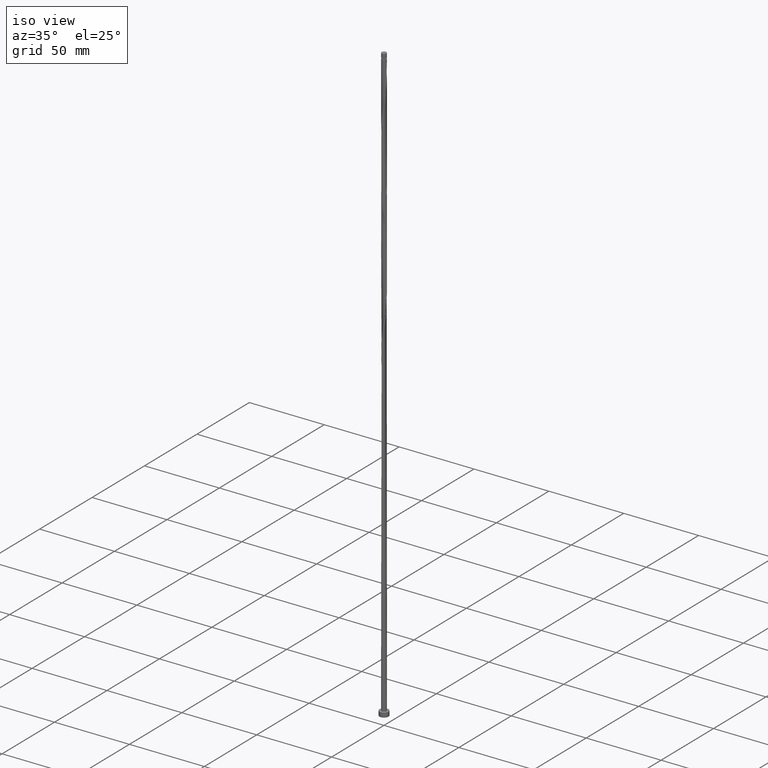
[diagram: clean part render]
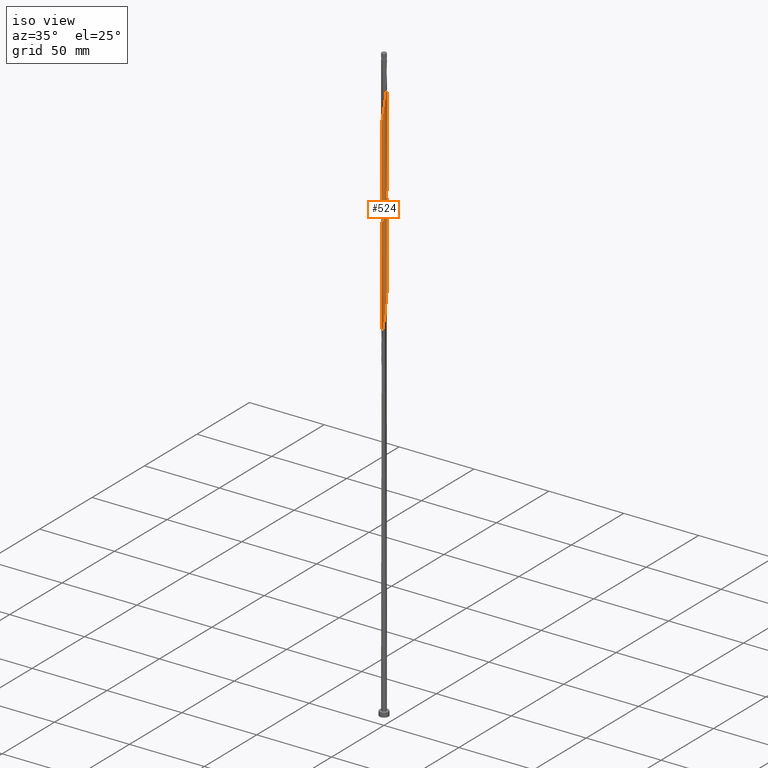
[diagram: same view with one face highlighted and labeled with its STEP entity id]
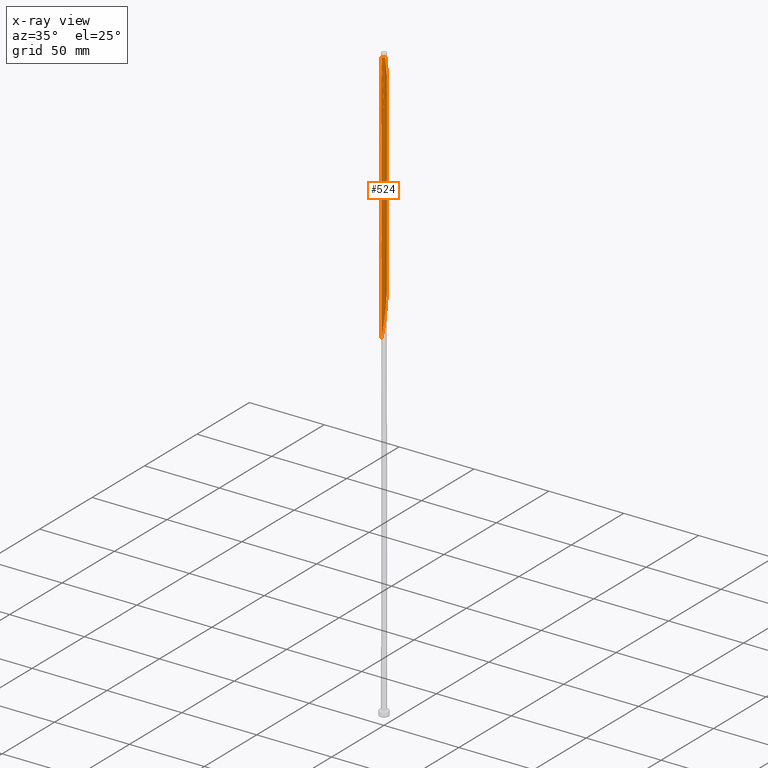
[diagram: x-ray of the same camera — body ghosted, the highlighted face saturated]
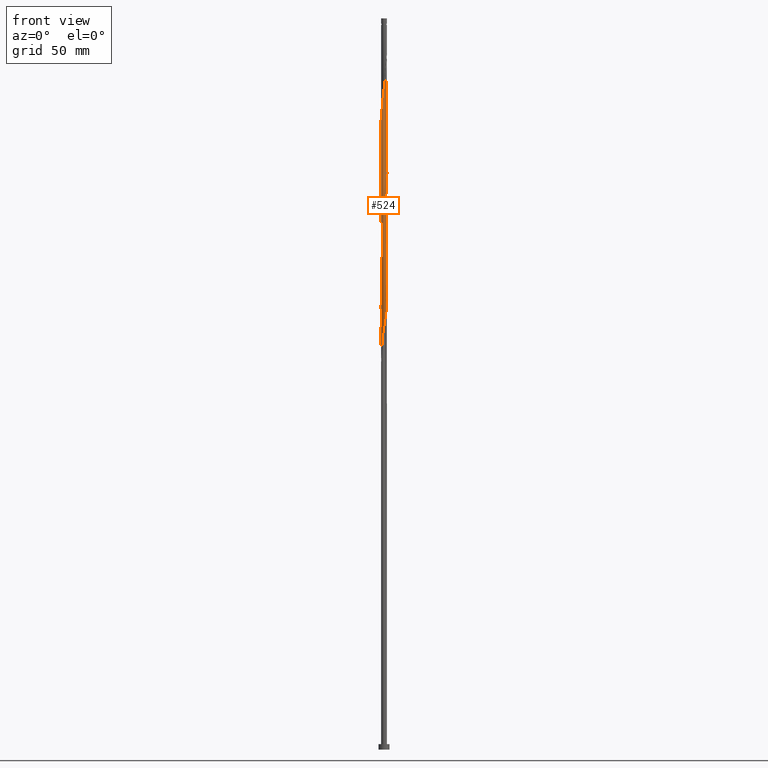
[diagram: same view with one face highlighted and labeled with its STEP entity id]
A machine part, iso view. The second image highlights one B-rep face of the part: STEP entity #524.
The next image is the same camera in x-ray: the body ghosted, the highlighted face saturated — about 0% of this face is hidden behind the body in this view.
A second angle (front view) of the same face is appended — the face is thin or edge-on in the first view.
In plain terms, the highlighted cylindrical surface (bore or boss wall) has radius 1.6 mm, axis along (-0, -0, -1).
Its self-contained STEP definition (entity closure, byte-faithful):
#2 = CARTESIAN_POINT ( 'NONE',  ( -0.9522025912731599817, 1.285811115666947391, 338.6447681997843233 ) ) ;
#11 = CARTESIAN_POINT ( 'NONE',  ( -1.600000000000000755, -2.018036081789663311E-16, 215.2146558877503253 ) ) ;
#23 = CARTESIAN_POINT ( 'NONE',  ( -1.517125823071060253, -0.5082609929661713322, 218.6447681997843802 ) ) ;
#32 = CARTESIAN_POINT ( 'NONE',  ( 0.9522025912731596486, -1.285811115666947391, 238.6447681997843802 ) ) ;
#41 = CARTESIAN_POINT ( 'NONE',  ( 0.7916881692281134697, 1.400539148827137481, 259.7558793108954660 ) ) ;
#44 = CARTESIAN_POINT ( 'NONE',  ( -1.087346785281442685, -1.185730590493187186, 353.0892126442287804 ) ) ;
#51 = CARTESIAN_POINT ( 'NONE',  ( 0.6640595169357693672, -1.455687108539137187, 236.4225459775620948 ) ) ;
#54 = CARTESIAN_POINT ( 'NONE',  ( -0.9522025912731623132, -1.285811115666948501, 354.2003237553398662 ) ) ;
#89 = CARTESIAN_POINT ( 'NONE',  ( 1.463705440089979160, -0.6677173424018667536, 373.0892126442287804 ) ) ;
#93 = CYLINDRICAL_SURFACE ( 'NONE', #745, 1.600000000000000089 ) ;
#97 = CARTESIAN_POINT ( 'NONE',  ( -1.600000000000002309, -0.07655039885880654538, 344.8056512596046446 ) ) ;
#105 = EDGE_CURVE ( 'NONE', #151, #998, #881, .T. ) ;
#107 = CARTESIAN_POINT ( 'NONE',  ( -0.8170583972648792770, 1.385891640840708705, 337.5336570886734080 ) ) ;
#119 = CARTESIAN_POINT ( 'NONE',  ( 0.1535925389775409378, 1.601464765976335469, 330.8669904220065519 ) ) ;
#139 = CARTESIAN_POINT ( 'NONE',  ( 1.392866848829033222, -0.7873512186013815750, 309.7558793108954660 ) ) ;
#140 = CIRCLE ( 'NONE', #1398, 1.599999999999963674 ) ;
#149 = VERTEX_POINT ( 'NONE', #1861 ) ;
#150 = CARTESIAN_POINT ( 'NONE',  ( -0.1827270737877119133, 1.598402602975290909, 333.0892126442286667 ) ) ;
#151 = VERTEX_POINT ( 'NONE', #369 ) ;
#162 = CARTESIAN_POINT ( 'NONE',  ( -1.570546206052143123, -0.3488046435304777981, 217.5336570886732375 ) ) ;
#170 = CARTESIAN_POINT ( 'NONE',  ( 1.576636982355593464, -0.3201497939431682260, 246.4225459775621232 ) ) ;
#179 = CARTESIAN_POINT ( 'NONE',  ( -0.9286322574885236270, -1.302935965560767295, 225.3114348664510374 ) ) ;
#185 = CARTESIAN_POINT ( 'NONE',  ( 0.4831994207707034916, 1.534535234023664652, 261.9781015331176945 ) ) ;
#188 = CARTESIAN_POINT ( 'NONE',  ( 1.517125823071062474, -0.5082609929661735526, 374.2003237553400368 ) ) ;
#194 = CARTESIAN_POINT ( 'NONE',  ( 1.378299581423948261, 0.8125824658744306150, 254.2003237553398662 ) ) ;
#198 = CARTESIAN_POINT ( 'NONE',  ( 1.310112901112438832, 0.9337474235744698259, 384.2003237553398662 ) ) ;
#208 = CARTESIAN_POINT ( 'NONE',  ( 1.179235034253427017, -1.081390185820699346, 369.7558793108955228 ) ) ;
#230 = DIRECTION ( 'NONE',  ( -0.000000000000000000, -0.000000000000000000, -1.000000000000000000 ) ) ;
#239 = CARTESIAN_POINT ( 'NONE',  ( -1.392866848829033222, 0.7873512186013812419, 343.0892126442288941 ) ) ;
#246 = LINE ( 'NONE', #398, #559 ) ;
#250 = CARTESIAN_POINT ( 'NONE',  ( -0.3183959798741484715, 1.568000000000404404, 396.4225459775619811 ) ) ;
#254 = CARTESIAN_POINT ( 'NONE',  ( 1.600000000000000311, -5.007719165922497691E-16, 315.2146558877502684 ) ) ;
#273 = CARTESIAN_POINT ( 'NONE',  ( 0.6640595169357693672, -1.455687108539137187, 303.0892126442288941 ) ) ;
#291 = CARTESIAN_POINT ( 'NONE',  ( -0.3183959798741217706, -1.567999999999999838, 296.4225459775621516 ) ) ;
#302 = CARTESIAN_POINT ( 'NONE',  ( -0.7916881692281132477, -1.400539148827137481, 293.0892126442287235 ) ) ;
#303 =( BOUNDED_CURVE ( )  B_SPLINE_CURVE ( 2, ( #1008, #1722, #1315, #1713, #570, #1603, #139, #1164, #445, #1174, #1742, #437, #273, #1026, #1185, #402, #1035, #1587, #291, #883, #1614, #302, #1464, #894, #414, #725, #1285, #543, #1140, #996, #1226, #312, #1798, #1363, #486, #1781, #612, #1761, #1510, #319, #775, #1201, #1371, #1492, #604, #756, #1622, #462, #903, #185, #1194, #41, #1070, #327, #1209, #746, #194, #1483, #1655, #1630, #1648, #479, #471, #170, #765, #1219, #1773, #1052, #1062, #454, #32, #1355, #51, #1346, #921, #1789, #1638, #1474, #1502, #911, #588, #619, #179, #337, #1079, #930, #1045, #344, #23, #162, #736, #1335, #11 ),
 .UNSPECIFIED., .F., .T. ) 
 B_SPLINE_CURVE_WITH_KNOTS ( ( 3, 2, 2, 2, 2, 2, 2, 2, 2, 2, 2, 2, 2, 2, 2, 2, 2, 2, 2, 2, 2, 2, 2, 2, 2, 2, 2, 2, 2, 2, 2, 2, 2, 2, 2, 2, 2, 2, 2, 2, 2, 2, 2, 2, 2, 2, 3 ),
 ( 0.5545286012773112949, 0.5583333333333333481, 0.5666666666666666519, 0.5749999999999999556, 0.5833333333333333703, 0.5916666666666666741, 0.5999999999999999778, 0.6083333333333332815, 0.6166666666666666963, 0.6250000000000000000, 0.6333333333333333037, 0.6416666666666667185, 0.6500000000000000222, 0.6583333333333333259, 0.6666666666666666297, 0.6750000000000000444, 0.6833333333333333481, 0.6916666666666666519, 0.6999999999999999556, 0.7083333333333333703, 0.7166666666666666741, 0.7249999999999999778, 0.7333333333333332815, 0.7416666666666666963, 0.7500000000000000000, 0.7583333333333333037, 0.7666666666666667185, 0.7750000000000000222, 0.7833333333333333259, 0.7916666666666666297, 0.8000000000000000444, 0.8083333333333333481, 0.8166666666666666519, 0.8249999999999999556, 0.8333333333333333703, 0.8416666666666666741, 0.8499999999999999778, 0.8583333333333332815, 0.8666666666666666963, 0.8750000000000000000, 0.8833333333333333037, 0.8916666666666667185, 0.9000000000000000222, 0.9083333333333333259, 0.9166666666666666297, 0.9250000000000000444, 0.9295286012773115170 ),
 .UNSPECIFIED. ) 
 CURVE ( )  GEOMETRIC_REPRESENTATION_ITEM ( )  RATIONAL_B_SPLINE_CURVE ( ( 0.9066196499552896526, 0.9068171577857023768, 0.9090909090910015422, 0.9041108139712494829, 0.9090909090910015422, 0.9041108139712494829, 0.9090909090910015422, 0.9041108139712494829, 0.9090909090910015422, 0.9041108139712494829, 0.9090909090910015422, 0.9041108139712494829, 0.9090909090910015422, 0.9041108139712494829, 0.9090909090910015422, 0.9041108139712494829, 0.9090909090910015422, 0.9041108139712494829, 0.9090909090910015422, 0.9041108139712494829, 0.9090909090910015422, 0.9041108139712494829, 0.9090909090910015422, 0.9041108139712494829, 0.9090909090910015422, 0.9041108139712494829, 0.9090909090910015422, 0.9041108139712494829, 0.9090909090910015422, 0.9041108139712494829, 0.9090909090910015422, 0.9041108139712494829, 0.9090909090910015422, 0.9041108139712494829, 0.9090909090910015422, 0.9041108139712494829, 0.9090909090910015422, 0.9041108139712494829, 0.9090909090910015422, 0.9041108139712494829, 0.9090909090910015422, 0.9041108139712494829, 0.9090909090910015422, 0.9041108139712494829, 0.9090909090910015422, 0.9041108139712494829, 0.9090909090910015422, 0.9041108139712494829, 0.9090909090910015422, 0.9041108139712494829, 0.9090909090910015422, 0.9041108139712494829, 0.9090909090910015422, 0.9041108139712494829, 0.9090909090910015422, 0.9041108139712494829, 0.9090909090910015422, 0.9041108139712494829, 0.9090909090910015422, 0.9041108139712494829, 0.9090909090910015422, 0.9041108139712494829, 0.9090909090910015422, 0.9041108139712494829, 0.9090909090910015422, 0.9041108139712494829, 0.9090909090910015422, 0.9041108139712494829, 0.9090909090910015422, 0.9041108139712494829, 0.9090909090910015422, 0.9041108139712494829, 0.9090909090910015422, 0.9041108139712494829, 0.9090909090910015422, 0.9041108139712494829, 0.9090909090910015422, 0.9041108139712494829, 0.9090909090910015422, 0.9041108139712494829, 0.9090909090910015422, 0.9041108139712494829, 0.9090909090910015422, 0.9041108139712494829, 0.9090909090910015422, 0.9041108139712494829, 0.9090909090910015422, 0.9041108139712494829, 0.9090909090910015422, 0.9041108139712494829, 0.9090909090910015422, 0.9063845652765485372, 0.9066196499552896526 ) ) 
 REPRESENTATION_ITEM ( '' )  );
#312 = CARTESIAN_POINT ( 'NONE',  ( -1.608746566492992969, -0.01464750798642886973, 281.9781015331176377 ) ) ;
#319 = CARTESIAN_POINT ( 'NONE',  ( -1.087346785281440686, 1.185730590493186298, 273.0892126442287235 ) ) ;
#327 = CARTESIAN_POINT ( 'NONE',  ( 1.065576345748934228, 1.205332782294397331, 257.5336570886732375 ) ) ;
#331 = CARTESIAN_POINT ( 'NONE',  ( -1.592691774424293660, 0.1527511429783695862, 347.5336570886733512 ) ) ;
#337 = CARTESIAN_POINT ( 'NONE',  ( -1.065576345748934228, -1.205332782294397331, 224.2003237553398947 ) ) ;
#339 = CARTESIAN_POINT ( 'NONE',  ( -1.576636982355595462, -0.3201497939431680595, 346.4225459775619811 ) ) ;
#344 = CARTESIAN_POINT ( 'NONE',  ( -1.463705440089977383, -0.6677173424018653103, 219.7558793108954944 ) ) ;
#346 = CARTESIAN_POINT ( 'NONE',  ( -0.5110606366066613448, -1.525482576237567223, 357.5336570886732943 ) ) ;
#369 = CARTESIAN_POINT ( 'NONE',  ( 1.600000000000000089, 1.959434878635765230E-16, 396.4225459775620948 ) ) ;
#384 = CARTESIAN_POINT ( 'NONE',  ( -1.600000000000000533, 0.07655039885880325634, 348.0394406955194881 ) ) ;
#394 = CARTESIAN_POINT ( 'NONE',  ( 1.087346785281442907, 1.185730590493187186, 386.4225459775620948 ) ) ;
#398 = CARTESIAN_POINT ( 'NONE',  ( -1.600000000000000089, 0.000000000000000000, 400.0000000000000000 ) ) ;
#402 = CARTESIAN_POINT ( 'NONE',  ( 0.1827270737877116913, -1.598402602975290909, 299.7558793108954092 ) ) ;
#406 = CARTESIAN_POINT ( 'NONE',  ( -1.600000000000000755, -2.018036081789663311E-16, 215.2146558877503253 ) ) ;
#414 = CARTESIAN_POINT ( 'NONE',  ( -1.179235034253425907, -1.081390185820697125, 289.7558793108954660 ) ) ;
#425 = CARTESIAN_POINT ( 'NONE',  ( -1.087346785281440686, 1.185730590493186298, 339.7558793108955228 ) ) ;
#437 = CARTESIAN_POINT ( 'NONE',  ( 0.8170583972648787219, -1.385891640840708927, 304.2003237553399799 ) ) ;
#445 = CARTESIAN_POINT ( 'NONE',  ( 1.198729843196938649, -1.059739007033828839, 307.5336570886732375 ) ) ;
#454 = CARTESIAN_POINT ( 'NONE',  ( 1.087346785281440686, -1.185730590493186742, 239.7558793108954660 ) ) ;
#458 = CARTESIAN_POINT ( 'NONE',  ( -1.600000000000000755, 8.296370558468615534E-16, 348.5479892210835260 ) ) ;
#462 = CARTESIAN_POINT ( 'NONE',  ( 0.1535925389775409378, 1.601464765976335469, 264.2003237553399231 ) ) ;
#465 = CARTESIAN_POINT ( 'NONE',  ( -0.3183959798741484715, 1.568000000000404626, 396.4225459775619811 ) ) ;
#471 = CARTESIAN_POINT ( 'NONE',  ( 1.592691774424293216, -0.1527511429783701691, 247.5336570886732375 ) ) ;
#474 = CARTESIAN_POINT ( 'NONE',  ( 0.1827270737877127738, 1.598402602975293130, 393.0892126442286667 ) ) ;
#479 = CARTESIAN_POINT ( 'NONE',  ( 1.608746566492992969, 0.01464750798642791216, 248.6447681997843517 ) ) ;
#481 = CARTESIAN_POINT ( 'NONE',  ( 1.570546206052145122, -0.3488046435304797965, 375.3114348664509521 ) ) ;
#486 = CARTESIAN_POINT ( 'NONE',  ( -1.526128889450611759, 0.4805524037857308861, 278.6447681997843233 ) ) ;
#490 = CARTESIAN_POINT ( 'NONE',  ( 1.608746566492994745, -0.01464750798643017597, 377.5336570886731806 ) ) ;
#524 = ADVANCED_FACE ( 'NONE', ( #1301 ), #93, .T. ) ;
#525 = CARTESIAN_POINT ( 'NONE',  ( 0.1535925389775404382, -1.601464765976337468, 361.9781015331176377 ) ) ;
#534 = CARTESIAN_POINT ( 'NONE',  ( -1.310112901112438610, -0.9337474235744704920, 350.8669904220066087 ) ) ;
#543 = CARTESIAN_POINT ( 'NONE',  ( -1.463705440089977383, -0.6677173424018653103, 286.4225459775620948 ) ) ;
#559 = VECTOR ( 'NONE', #835, 1000.000000000000000 ) ;
#562 = CARTESIAN_POINT ( 'NONE',  ( 0.7916881692281134697, 1.400539148827137481, 326.4225459775620948 ) ) ;
#570 = CARTESIAN_POINT ( 'NONE',  ( 1.526128889450611537, -0.4805524037857317743, 311.9781015331177514 ) ) ;
#578 = CARTESIAN_POINT ( 'NONE',  ( 1.570546206052143567, 0.3488046435304771320, 317.5336570886734080 ) ) ;
#580 = ORIENTED_EDGE ( 'NONE', *, *, #1359, .F. ) ;
#588 = CARTESIAN_POINT ( 'NONE',  ( -0.6374437949994082864, -1.467537191425400955, 227.5336570886732375 ) ) ;
#597 = CARTESIAN_POINT ( 'NONE',  ( 0.000000000000000000, 0.000000000000000000, 396.4225459775620948 ) ) ;
#604 = CARTESIAN_POINT ( 'NONE',  ( -0.3468938551971859074, 1.561942589606428067, 267.5336570886732943 ) ) ;
#607 = CARTESIAN_POINT ( 'NONE',  ( -1.198729843196940870, -1.059739007033828617, 351.9781015331176945 ) ) ;
#612 = CARTESIAN_POINT ( 'NONE',  ( -1.392866848829033222, 0.7873512186013812419, 276.4225459775621516 ) ) ;
#614 = CARTESIAN_POINT ( 'NONE',  ( -0.3468938551971870732, -1.561942589606430287, 358.6447681997843802 ) ) ;
#619 = CARTESIAN_POINT ( 'NONE',  ( -0.7916881692281132477, -1.400539148827137481, 226.4225459775620948 ) ) ;
#623 = CARTESIAN_POINT ( 'NONE',  ( 1.589646386272570044, -0.1817260757584543140, 376.4225459775621516 ) ) ;
#658 = CARTESIAN_POINT ( 'NONE',  ( 0.6640595169357711436, 1.455687108539138963, 389.7558793108954660 ) ) ;
#667 = CARTESIAN_POINT ( 'NONE',  ( -0.6640595169357709215, -1.455687108539138963, 356.4225459775620948 ) ) ;
#680 = CARTESIAN_POINT ( 'NONE',  ( 0.9286322574885242931, 1.302935965560767073, 325.3114348664509521 ) ) ;
#692 = CARTESIAN_POINT ( 'NONE',  ( 0.3183959798741219371, 1.567999999999999838, 329.7558793108955228 ) ) ;
#703 = VERTEX_POINT ( 'NONE', #406 ) ;
#704 = CARTESIAN_POINT ( 'NONE',  ( 1.378299581423948261, 0.8125824658744306150, 320.8669904220065519 ) ) ;
#725 = CARTESIAN_POINT ( 'NONE',  ( -1.292893722757917807, -0.9574475893469971410, 288.6447681997844370 ) ) ;
#736 = CARTESIAN_POINT ( 'NONE',  ( -1.589646386272567824, -0.1817260757584534536, 216.4225459775621516 ) ) ;
#745 = AXIS2_PLACEMENT_3D ( 'NONE', #1728, #1136, #1583 ) ;
#746 = CARTESIAN_POINT ( 'NONE',  ( 1.292893722757918473, 0.9574475893469965859, 255.3114348664510374 ) ) ;
#756 = CARTESIAN_POINT ( 'NONE',  ( -0.1827270737877119133, 1.598402602975290909, 266.4225459775620948 ) ) ;
#765 = CARTESIAN_POINT ( 'NONE',  ( 1.526128889450611537, -0.4805524037857317743, 245.3114348664510374 ) ) ;
#768 = CARTESIAN_POINT ( 'NONE',  ( -1.475620796545629831, 0.6409550136282937682, 344.2003237553399231 ) ) ;
#775 = CARTESIAN_POINT ( 'NONE',  ( -0.9522025912731599817, 1.285811115666947391, 271.9781015331177514 ) ) ;
#781 = CARTESIAN_POINT ( 'NONE',  ( 0.5110606366066614559, 1.525482576237567223, 390.8669904220066087 ) ) ;
#816 = CARTESIAN_POINT ( 'NONE',  ( 0.3468938551971877948, 1.561942589606429843, 391.9781015331177514 ) ) ;
#829 = CARTESIAN_POINT ( 'NONE',  ( -1.310112901112436168, 0.9337474235744698259, 341.9781015331175809 ) ) ;
#831 = VECTOR ( 'NONE', #1572, 1000.000000000000000 ) ;
#833 = ORIENTED_EDGE ( 'NONE', *, *, #105, .F. ) ;
#835 = DIRECTION ( 'NONE',  ( -0.000000000000000000, -0.000000000000000000, -1.000000000000000000 ) ) ;
#849 = ORIENTED_EDGE ( 'NONE', *, *, #1436, .F. ) ;
#852 = CARTESIAN_POINT ( 'NONE',  ( 1.292893722757918473, 0.9574475893469965859, 321.9781015331176945 ) ) ;
#863 = CARTESIAN_POINT ( 'NONE',  ( 1.179235034253425907, 1.081390185820697125, 323.0892126442287235 ) ) ;
#881 = LINE ( 'NONE', #991, #831 ) ;
#883 = CARTESIAN_POINT ( 'NONE',  ( -0.4831994207707026590, -1.534535234023664652, 295.3114348664511226 ) ) ;
#894 = CARTESIAN_POINT ( 'NONE',  ( -1.065576345748934228, -1.205332782294397331, 290.8669904220066087 ) ) ;
#902 = EDGE_CURVE ( 'NONE', #149, #703, #246, .T. ) ;
#903 = CARTESIAN_POINT ( 'NONE',  ( 0.3183959798741219371, 1.567999999999999838, 263.0892126442288372 ) ) ;
#911 = CARTESIAN_POINT ( 'NONE',  ( -0.4831994207707026590, -1.534535234023664652, 228.6447681997843802 ) ) ;
#921 = CARTESIAN_POINT ( 'NONE',  ( 0.3468938551971852968, -1.561942589606428289, 234.2003237553399231 ) ) ;
#930 = CARTESIAN_POINT ( 'NONE',  ( -1.292893722757917807, -0.9574475893469971410, 221.9781015331176661 ) ) ;
#933 = CARTESIAN_POINT ( 'NONE',  ( -1.475620796545631830, -0.6409550136282935462, 348.6447681997842665 ) ) ;
#942 = CARTESIAN_POINT ( 'NONE',  ( -1.392866848829035442, -0.7873512186013823522, 349.7558793108954092 ) ) ;
#967 =( BOUNDED_CURVE ( )  B_SPLINE_CURVE ( 2, ( #1694, #384, #331, #976, #1505, #768, #239, #829, #1416, #425, #2, #107, #1435, #1444, #1325, #150, #1732, #119, #692, #1017, #1888, #562, #680, #1305, #863, #852, #704, #1595, #1152, #578, #1454, #1577, #1296 ),
 .UNSPECIFIED., .F., .T. ) 
 B_SPLINE_CURVE_WITH_KNOTS ( ( 3, 2, 2, 2, 2, 2, 2, 2, 2, 2, 2, 2, 2, 2, 2, 2, 3 ),
 ( 0.4295286012773115170, 0.4333333333333333481, 0.4416666666666666519, 0.4500000000000000111, 0.4583333333333333148, 0.4666666666666666741, 0.4749999999999999778, 0.4833333333333333370, 0.4916666666666666408, 0.5000000000000000000, 0.5083333333333333037, 0.5166666666666667185, 0.5250000000000000222, 0.5333333333333333259, 0.5416666666666666297, 0.5500000000000000444, 0.5545286012773112949 ),
 .UNSPECIFIED. ) 
 CURVE ( )  GEOMETRIC_REPRESENTATION_ITEM ( )  RATIONAL_B_SPLINE_CURVE ( ( 0.9066196499552897636, 0.9068171577857024879, 0.9090909090910015422, 0.9041108139712494829, 0.9090909090910015422, 0.9041108139712494829, 0.9090909090910015422, 0.9041108139712494829, 0.9090909090910015422, 0.9041108139712494829, 0.9090909090910015422, 0.9041108139712494829, 0.9090909090910015422, 0.9041108139712494829, 0.9090909090910015422, 0.9041108139712494829, 0.9090909090910015422, 0.9041108139712494829, 0.9090909090910015422, 0.9041108139712494829, 0.9090909090910015422, 0.9041108139712494829, 0.9090909090910015422, 0.9041108139712494829, 0.9090909090910015422, 0.9041108139712494829, 0.9090909090910015422, 0.9041108139712494829, 0.9090909090910015422, 0.9041108139712494829, 0.9090909090910015422, 0.9063845652765486482, 0.9066196499552896526 ) ) 
 REPRESENTATION_ITEM ( '' )  );
#976 = CARTESIAN_POINT ( 'NONE',  ( -1.576636982355593464, 0.3201497939431680040, 346.4225459775620379 ) ) ;
#984 = CARTESIAN_POINT ( 'NONE',  ( 0.6374437949994080643, -1.467537191425403620, 365.3114348664509521 ) ) ;
#991 = CARTESIAN_POINT ( 'NONE',  ( 1.600000000000000089, 1.959434878635765230E-16, 400.0000000000000000 ) ) ;
#996 = CARTESIAN_POINT ( 'NONE',  ( -1.570546206052143123, -0.3488046435304777981, 284.2003237553399231 ) ) ;
#998 = VERTEX_POINT ( 'NONE', #254 ) ;
#1008 = CARTESIAN_POINT ( 'NONE',  ( 1.600000000000000089, -5.007719165922497691E-16, 315.2146558877502684 ) ) ;
#1017 = CARTESIAN_POINT ( 'NONE',  ( 0.4831994207707034916, 1.534535234023664652, 328.6447681997842665 ) ) ;
#1026 = CARTESIAN_POINT ( 'NONE',  ( 0.5110606366066593464, -1.525482576237566334, 301.9781015331176945 ) ) ;
#1035 = CARTESIAN_POINT ( 'NONE',  ( 0.01456726740508504023, -1.599933684475813411, 298.6447681997844370 ) ) ;
#1045 = CARTESIAN_POINT ( 'NONE',  ( -1.378299581423948261, -0.8125824658744308371, 220.8669904220065234 ) ) ;
#1052 = CARTESIAN_POINT ( 'NONE',  ( 1.310112901112435946, -0.9337474235744704920, 241.9781015331176377 ) ) ;
#1062 = CARTESIAN_POINT ( 'NONE',  ( 1.198729843196938649, -1.059739007033828839, 240.8669904220065519 ) ) ;
#1070 = CARTESIAN_POINT ( 'NONE',  ( 0.9286322574885242931, 1.302935965560767073, 258.6447681997843233 ) ) ;
#1074 = CARTESIAN_POINT ( 'NONE',  ( 1.592691774424295659, 0.1527511429783681429, 378.6447681997843233 ) ) ;
#1079 = CARTESIAN_POINT ( 'NONE',  ( -1.179235034253425907, -1.081390185820697125, 223.0892126442287520 ) ) ;
#1083 = CARTESIAN_POINT ( 'NONE',  ( 0.8170583972648817195, 1.385891640840709371, 388.6447681997843233 ) ) ;
#1108 =( BOUNDED_CURVE ( )  B_SPLINE_CURVE ( 2, ( #1365, #97, #1848, #339, #1229, #933, #942, #534, #607, #44, #54, #1130, #667, #346, #614, #1221, #1523, #525, #1783, #1275, #984, #1374, #1792, #1801, #208, #1650, #1703, #89, #188, #481, #623, #490, #1074, #1406, #1642, #1425, #1513, #198, #1211, #394, #1567, #1083, #658, #781, #816, #474, #1658, #1266, #250 ),
 .UNSPECIFIED., .F., .T. ) 
 B_SPLINE_CURVE_WITH_KNOTS ( ( 3, 2, 2, 2, 2, 2, 2, 2, 2, 2, 2, 2, 2, 2, 2, 2, 2, 2, 2, 2, 2, 2, 2, 2, 3 ),
 ( 0.5545286012773117390, 0.5583333333333333481, 0.5666666666666666519, 0.5749999999999999556, 0.5833333333333332593, 0.5916666666666666741, 0.5999999999999999778, 0.6083333333333333925, 0.6166666666666666963, 0.6250000000000000000, 0.6333333333333333037, 0.6416666666666666075, 0.6500000000000000222, 0.6583333333333333259, 0.6666666666666667407, 0.6750000000000000444, 0.6833333333333333481, 0.6916666666666666519, 0.6999999999999999556, 0.7083333333333332593, 0.7166666666666666741, 0.7249999999999999778, 0.7333333333333333925, 0.7416666666666666963, 0.7500000000000000000 ),
 .UNSPECIFIED. ) 
 CURVE ( )  GEOMETRIC_REPRESENTATION_ITEM ( )  RATIONAL_B_SPLINE_CURVE ( ( 0.9066196499552958699, 0.9068171577857087051, 0.9090909090910075374, 0.9041108139712555891, 0.9090909090910075374, 0.9041108139712555891, 0.9090909090910075374, 0.9041108139712555891, 0.9090909090910075374, 0.9041108139712555891, 0.9090909090910075374, 0.9041108139712555891, 0.9090909090910075374, 0.9041108139712555891, 0.9090909090910075374, 0.9041108139712555891, 0.9090909090910075374, 0.9041108139712555891, 0.9090909090910075374, 0.9041108139712555891, 0.9090909090910075374, 0.9041108139712555891, 0.9090909090910075374, 0.9041108139712555891, 0.9090909090910075374, 0.9041108139712555891, 0.9090909090910075374, 0.9041108139712555891, 0.9090909090910075374, 0.9041108139712555891, 0.9090909090910075374, 0.9041108139712555891, 0.9090909090910075374, 0.9041108139712555891, 0.9090909090910075374, 0.9041108139712555891, 0.9090909090910075374, 0.9041108139712555891, 0.9090909090910075374, 0.9041108139712555891, 0.9090909090910075374, 0.9041108139712555891, 0.9090909090910075374, 0.9041108139712555891, 0.9090909090910075374, 0.9041108139712555891, 0.9090909090910075374, 0.9041108139712555891, 0.9090909090910075374 ) ) 
 REPRESENTATION_ITEM ( '' )  );
#1112 = VERTEX_POINT ( 'NONE', #458 ) ;
#1130 = CARTESIAN_POINT ( 'NONE',  ( -0.8170583972648806093, -1.385891640840709815, 355.3114348664509521 ) ) ;
#1136 = DIRECTION ( 'NONE',  ( -0.000000000000000000, -0.000000000000000000, -1.000000000000000000 ) ) ;
#1140 = CARTESIAN_POINT ( 'NONE',  ( -1.517125823071060253, -0.5082609929661713322, 285.3114348664510089 ) ) ;
#1144 = ORIENTED_EDGE ( 'NONE', *, *, #902, .T. ) ;
#1152 = CARTESIAN_POINT ( 'NONE',  ( 1.517125823071060697, 0.5082609929661705550, 318.6447681997843233 ) ) ;
#1164 = CARTESIAN_POINT ( 'NONE',  ( 1.310112901112435946, -0.9337474235744704920, 308.6447681997843233 ) ) ;
#1174 = CARTESIAN_POINT ( 'NONE',  ( 1.087346785281440686, -1.185730590493186742, 306.4225459775621516 ) ) ;
#1185 = CARTESIAN_POINT ( 'NONE',  ( 0.3468938551971852968, -1.561942589606428289, 300.8669904220065519 ) ) ;
#1189 = LINE ( 'NONE', #1349, #1518 ) ;
#1194 = CARTESIAN_POINT ( 'NONE',  ( 0.6374437949994085084, 1.467537191425400955, 260.8669904220066087 ) ) ;
#1201 = CARTESIAN_POINT ( 'NONE',  ( -0.8170583972648792770, 1.385891640840708705, 270.8669904220066087 ) ) ;
#1209 = CARTESIAN_POINT ( 'NONE',  ( 1.179235034253425907, 1.081390185820697125, 256.4225459775621516 ) ) ;
#1211 = CARTESIAN_POINT ( 'NONE',  ( 1.198729843196941758, 1.059739007033828173, 385.3114348664510089 ) ) ;
#1219 = CARTESIAN_POINT ( 'NONE',  ( 1.475620796545629609, -0.6409550136282938793, 244.2003237553398378 ) ) ;
#1221 = CARTESIAN_POINT ( 'NONE',  ( -0.1827270737877125795, -1.598402602975293130, 359.7558793108954660 ) ) ;
#1226 = CARTESIAN_POINT ( 'NONE',  ( -1.589646386272567824, -0.1817260757584534536, 283.0892126442288372 ) ) ;
#1229 = CARTESIAN_POINT ( 'NONE',  ( -1.526128889450613979, -0.4805524037857309416, 347.5336570886732375 ) ) ;
#1239 = EDGE_LOOP ( 'NONE', ( #1473, #1547, #1463, #1144, #849, #833, #1452, #580 ) ) ;
#1240 = EDGE_CURVE ( 'NONE', #1612, #1112, #1189, .T. ) ;
#1266 = CARTESIAN_POINT ( 'NONE',  ( -0.1535925389775395500, 1.601464765976337468, 395.3114348664509521 ) ) ;
#1275 = CARTESIAN_POINT ( 'NONE',  ( 0.4831994207707020483, -1.534535234023666872, 364.2003237553398662 ) ) ;
#1285 = CARTESIAN_POINT ( 'NONE',  ( -1.378299581423948261, -0.8125824658744308371, 287.5336570886734080 ) ) ;
#1296 = CARTESIAN_POINT ( 'NONE',  ( 1.600000000000000089, -5.007719165922497691E-16, 315.2146558877502684 ) ) ;
#1300 = EDGE_CURVE ( 'NONE', #149, #1752, #1108, .T. ) ;
#1301 = FACE_OUTER_BOUND ( 'NONE', #1239, .T. ) ;
#1305 = CARTESIAN_POINT ( 'NONE',  ( 1.065576345748934228, 1.205332782294397331, 324.2003237553399231 ) ) ;
#1315 = CARTESIAN_POINT ( 'NONE',  ( 1.592691774424293216, -0.1527511429783701691, 314.2003237553399799 ) ) ;
#1325 = CARTESIAN_POINT ( 'NONE',  ( -0.3468938551971859074, 1.561942589606428067, 334.2003237553398662 ) ) ;
#1335 = CARTESIAN_POINT ( 'NONE',  ( -1.600000000000000755, -0.09115797991428881142, 215.8202471971348473 ) ) ;
#1346 = CARTESIAN_POINT ( 'NONE',  ( 0.5110606366066593464, -1.525482576237566334, 235.3114348664510089 ) ) ;
#1349 = CARTESIAN_POINT ( 'NONE',  ( -1.600000000000000089, 0.000000000000000000, 400.0000000000000000 ) ) ;
#1355 = CARTESIAN_POINT ( 'NONE',  ( 0.8170583972648787219, -1.385891640840708927, 237.5336570886732659 ) ) ;
#1359 = EDGE_CURVE ( 'NONE', #1112, #998, #967, .T. ) ;
#1363 = CARTESIAN_POINT ( 'NONE',  ( -1.576636982355593464, 0.3201497939431680040, 279.7558793108954092 ) ) ;
#1365 = CARTESIAN_POINT ( 'NONE',  ( -1.600000000000002975, -1.569583619169727394E-16, 344.2971027340406067 ) ) ;
#1371 = CARTESIAN_POINT ( 'NONE',  ( -0.6640595169357694783, 1.455687108539137187, 269.7558793108954092 ) ) ;
#1374 = CARTESIAN_POINT ( 'NONE',  ( 0.7916881692281136917, -1.400539148827139702, 366.4225459775621516 ) ) ;
#1398 = AXIS2_PLACEMENT_3D ( 'NONE', #597, #230, #1548 ) ;
#1406 = CARTESIAN_POINT ( 'NONE',  ( 1.576636982355595462, 0.3201497939431680595, 379.7558793108954660 ) ) ;
#1416 = CARTESIAN_POINT ( 'NONE',  ( -1.198729843196938649, 1.059739007033828395, 340.8669904220064950 ) ) ;
#1425 = CARTESIAN_POINT ( 'NONE',  ( 1.475620796545632496, 0.6409550136282925470, 381.9781015331176377 ) ) ;
#1435 = CARTESIAN_POINT ( 'NONE',  ( -0.6640595169357694783, 1.455687108539137187, 336.4225459775621516 ) ) ;
#1436 = EDGE_CURVE ( 'NONE', #998, #703, #303, .T. ) ;
#1444 = CARTESIAN_POINT ( 'NONE',  ( -0.5110606366066599016, 1.525482576237565890, 335.3114348664510658 ) ) ;
#1452 = ORIENTED_EDGE ( 'NONE', *, *, #105, .T. ) ;
#1454 = CARTESIAN_POINT ( 'NONE',  ( 1.589646386272567824, 0.1817260757584532593, 316.4225459775620948 ) ) ;
#1463 = ORIENTED_EDGE ( 'NONE', *, *, #1300, .F. ) ;
#1464 = CARTESIAN_POINT ( 'NONE',  ( -0.9286322574885236270, -1.302935965560767295, 291.9781015331176377 ) ) ;
#1473 = ORIENTED_EDGE ( 'NONE', *, *, #1240, .F. ) ;
#1474 = CARTESIAN_POINT ( 'NONE',  ( -0.1535925389775415206, -1.601464765976335691, 230.8669904220065234 ) ) ;
#1483 = CARTESIAN_POINT ( 'NONE',  ( 1.463705440089977605, 0.6677173424018650882, 253.0892126442288372 ) ) ;
#1492 = CARTESIAN_POINT ( 'NONE',  ( -0.5110606366066599016, 1.525482576237565890, 268.6447681997843802 ) ) ;
#1493 = EDGE_CURVE ( 'NONE', #1612, #1752, #140, .T. ) ;
#1502 = CARTESIAN_POINT ( 'NONE',  ( -0.3183959798741217706, -1.567999999999999838, 229.7558793108954944 ) ) ;
#1505 = CARTESIAN_POINT ( 'NONE',  ( -1.526128889450611759, 0.4805524037857308861, 345.3114348664510089 ) ) ;
#1510 = CARTESIAN_POINT ( 'NONE',  ( -1.198729843196938649, 1.059739007033828395, 274.2003237553398662 ) ) ;
#1513 = CARTESIAN_POINT ( 'NONE',  ( 1.392866848829035442, 0.7873512186013821301, 383.0892126442288372 ) ) ;
#1518 = VECTOR ( 'NONE', #1756, 1000.000000000000000 ) ;
#1523 = CARTESIAN_POINT ( 'NONE',  ( -0.01456726740508640719, -1.599933684475815410, 360.8669904220065519 ) ) ;
#1547 = ORIENTED_EDGE ( 'NONE', *, *, #1493, .T. ) ;
#1548 = DIRECTION ( 'NONE',  ( -1.000000000000000000, 0.000000000000000000, 0.000000000000000000 ) ) ;
#1567 = CARTESIAN_POINT ( 'NONE',  ( 0.9522025912731623132, 1.285811115666948501, 387.5336570886732943 ) ) ;
#1572 = DIRECTION ( 'NONE',  ( -0.000000000000000000, -0.000000000000000000, -1.000000000000000000 ) ) ;
#1577 = CARTESIAN_POINT ( 'NONE',  ( 1.600000000000000311, 0.09115797991429264169, 315.8202471971347904 ) ) ;
#1583 = DIRECTION ( 'NONE',  ( -1.000000000000000000, 0.000000000000000000, 0.000000000000000000 ) ) ;
#1587 = CARTESIAN_POINT ( 'NONE',  ( -0.1535925389775415206, -1.601464765976335691, 297.5336570886731806 ) ) ;
#1595 = CARTESIAN_POINT ( 'NONE',  ( 1.463705440089977605, 0.6677173424018650882, 319.7558793108954660 ) ) ;
#1603 = CARTESIAN_POINT ( 'NONE',  ( 1.475620796545629609, -0.6409550136282938793, 310.8669904220065519 ) ) ;
#1612 = VERTEX_POINT ( 'NONE', #1652 ) ;
#1614 = CARTESIAN_POINT ( 'NONE',  ( -0.6374437949994082864, -1.467537191425400955, 294.2003237553398094 ) ) ;
#1622 = CARTESIAN_POINT ( 'NONE',  ( -0.01456726740508541146, 1.599933684475813411, 265.3114348664510089 ) ) ;
#1630 = CARTESIAN_POINT ( 'NONE',  ( 1.570546206052143567, 0.3488046435304771320, 250.8669904220066087 ) ) ;
#1638 = CARTESIAN_POINT ( 'NONE',  ( 0.01456726740508504023, -1.599933684475813411, 231.9781015331176945 ) ) ;
#1642 = CARTESIAN_POINT ( 'NONE',  ( 1.526128889450614423, 0.4805524037857303865, 380.8669904220066655 ) ) ;
#1648 = CARTESIAN_POINT ( 'NONE',  ( 1.589646386272567824, 0.1817260757584532593, 249.7558793108954660 ) ) ;
#1650 = CARTESIAN_POINT ( 'NONE',  ( 1.292893722757918695, -0.9574475893469995835, 370.8669904220064950 ) ) ;
#1652 = CARTESIAN_POINT ( 'NONE',  ( -1.599999999999963674, 0.000000000000000000, 396.4225459775620948 ) ) ;
#1655 = CARTESIAN_POINT ( 'NONE',  ( 1.517125823071060697, 0.5082609929661705550, 251.9781015331177230 ) ) ;
#1658 = CARTESIAN_POINT ( 'NONE',  ( 0.01456726740508662056, 1.599933684475815410, 394.2003237553399231 ) ) ;
#1694 = CARTESIAN_POINT ( 'NONE',  ( -1.600000000000000755, 8.296370558468615534E-16, 348.5479892210835828 ) ) ;
#1703 = CARTESIAN_POINT ( 'NONE',  ( 1.378299581423949371, -0.8125824658744331686, 371.9781015331176945 ) ) ;
#1713 = CARTESIAN_POINT ( 'NONE',  ( 1.576636982355593464, -0.3201497939431682260, 313.0892126442288372 ) ) ;
#1722 = CARTESIAN_POINT ( 'NONE',  ( 1.600000000000000533, -0.07655039885879905137, 314.7061073621862874 ) ) ;
#1728 = CARTESIAN_POINT ( 'NONE',  ( 0.000000000000000000, 0.000000000000000000, 400.0000000000000000 ) ) ;
#1732 = CARTESIAN_POINT ( 'NONE',  ( -0.01456726740508541146, 1.599933684475813411, 331.9781015331176945 ) ) ;
#1742 = CARTESIAN_POINT ( 'NONE',  ( 0.9522025912731596486, -1.285811115666947391, 305.3114348664509521 ) ) ;
#1752 = VERTEX_POINT ( 'NONE', #465 ) ;
#1756 = DIRECTION ( 'NONE',  ( -0.000000000000000000, -0.000000000000000000, -1.000000000000000000 ) ) ;
#1761 = CARTESIAN_POINT ( 'NONE',  ( -1.310112901112436168, 0.9337474235744698259, 275.3114348664511226 ) ) ;
#1773 = CARTESIAN_POINT ( 'NONE',  ( 1.392866848829033222, -0.7873512186013815750, 243.0892126442288088 ) ) ;
#1781 = CARTESIAN_POINT ( 'NONE',  ( -1.475620796545629831, 0.6409550136282937682, 277.5336570886732375 ) ) ;
#1783 = CARTESIAN_POINT ( 'NONE',  ( 0.3183959798741216596, -1.568000000000001837, 363.0892126442289509 ) ) ;
#1789 = CARTESIAN_POINT ( 'NONE',  ( 0.1827270737877116913, -1.598402602975290909, 233.0892126442287804 ) ) ;
#1792 = CARTESIAN_POINT ( 'NONE',  ( 0.9286322574885240710, -1.302935965560770404, 367.5336570886731238 ) ) ;
#1798 = CARTESIAN_POINT ( 'NONE',  ( -1.592691774424293660, 0.1527511429783695862, 280.8669904220065519 ) ) ;
#1801 = CARTESIAN_POINT ( 'NONE',  ( 1.065576345748934228, -1.205332782294399996, 368.6447681997842096 ) ) ;
#1848 = CARTESIAN_POINT ( 'NONE',  ( -1.592691774424295437, -0.1527511429783690311, 345.3114348664510658 ) ) ;
#1861 = CARTESIAN_POINT ( 'NONE',  ( -1.600000000000002975, -1.569583619169727394E-16, 344.2971027340406067 ) ) ;
#1888 = CARTESIAN_POINT ( 'NONE',  ( 0.6374437949994085084, 1.467537191425400955, 327.5336570886732375 ) ) ;